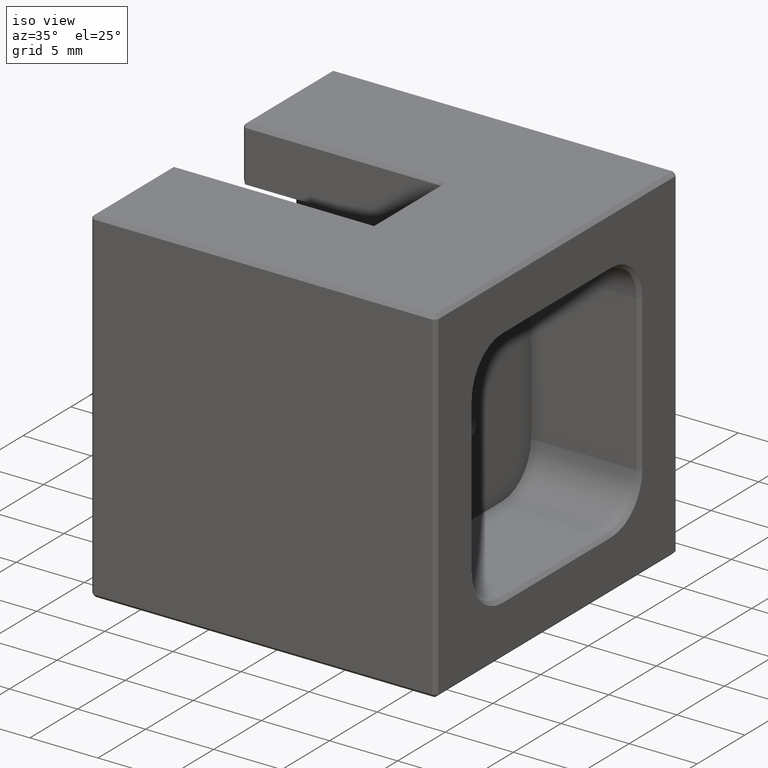
[diagram: clean part render]
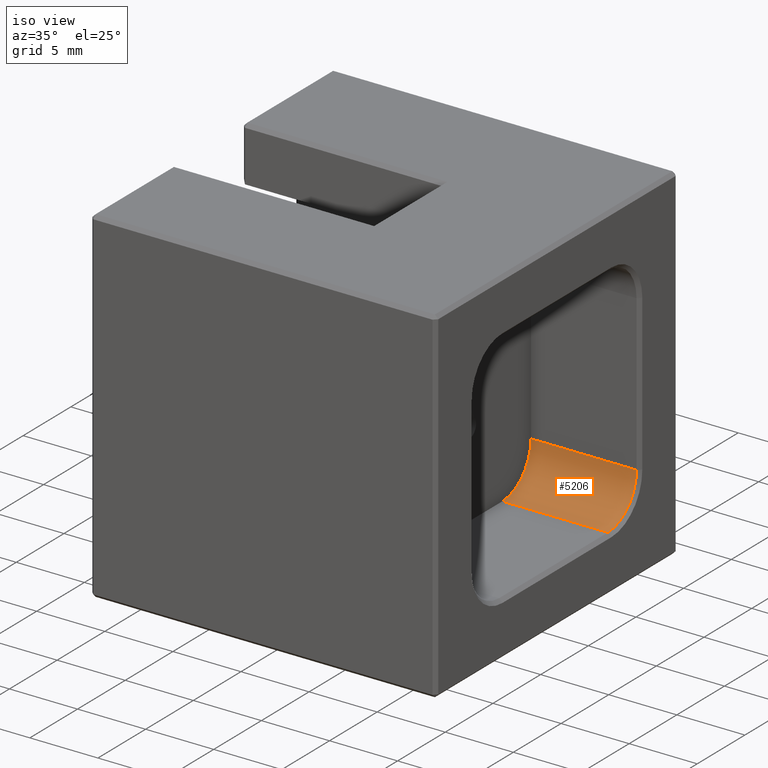
[diagram: same view with one face highlighted and labeled with its STEP entity id]
A machine part, iso view. The second image highlights one B-rep face of the part: STEP entity #5206.
In plain terms, the highlighted cylindrical surface (partial cylindrical patch) has radius 3 mm, axis along (-1, 0, 0).
Its self-contained STEP definition (entity closure, byte-faithful):
#27 = CARTESIAN_POINT ( 'NONE',  ( 4.699999999999995737, 5.699999999999997513, -5.699999999999998401 ) ) ;
#357 = EDGE_CURVE ( 'NONE', #5901, #1557, #3948, .T. ) ;
#454 = CARTESIAN_POINT ( 'NONE',  ( 4.699999999999995737, 8.699999999999997513, -5.699999999999998401 ) ) ;
#532 = CARTESIAN_POINT ( 'NONE',  ( 12.45000000000000284, 8.699999999999997513, -5.699999999999998401 ) ) ;
#546 = AXIS2_PLACEMENT_3D ( 'NONE', #5153, #4287, #917 ) ;
#618 = DIRECTION ( 'NONE',  ( 1.000000000000000000, 0.000000000000000000, 0.000000000000000000 ) ) ;
#710 = ORIENTED_EDGE ( 'NONE', *, *, #2223, .F. ) ;
#917 = DIRECTION ( 'NONE',  ( 0.000000000000000000, 0.000000000000000000, 1.000000000000000000 ) ) ;
#1118 = CIRCLE ( 'NONE', #5376, 3.000000000000000888 ) ;
#1519 = EDGE_CURVE ( 'NONE', #4354, #1557, #3793, .T. ) ;
#1557 = VERTEX_POINT ( 'NONE', #532 ) ;
#1833 = EDGE_LOOP ( 'NONE', ( #4302, #4150, #4574, #710 ) ) ;
#1937 = AXIS2_PLACEMENT_3D ( 'NONE', #27, #3464, #5894 ) ;
#2223 = EDGE_CURVE ( 'NONE', #4332, #5901, #1118, .T. ) ;
#2564 = DIRECTION ( 'NONE',  ( 0.000000000000000000, 0.000000000000000000, -1.000000000000000000 ) ) ;
#3051 = CARTESIAN_POINT ( 'NONE',  ( 4.699999999999995737, 5.699999999999997513, -5.699999999999998401 ) ) ;
#3306 = CYLINDRICAL_SURFACE ( 'NONE', #1937, 3.000000000000000000 ) ;
#3464 = DIRECTION ( 'NONE',  ( -1.000000000000000000, 0.000000000000000000, 0.000000000000000000 ) ) ;
#3793 = CIRCLE ( 'NONE', #546, 3.000000000000000000 ) ;
#3866 = FACE_OUTER_BOUND ( 'NONE', #1833, .T. ) ;
#3948 = LINE ( 'NONE', #4161, #5147 ) ;
#4141 = LINE ( 'NONE', #5814, #5618 ) ;
#4150 = ORIENTED_EDGE ( 'NONE', *, *, #1519, .T. ) ;
#4161 = CARTESIAN_POINT ( 'NONE',  ( 12.69999999999999574, 8.699999999999997513, -5.699999999999998401 ) ) ;
#4204 = DIRECTION ( 'NONE',  ( 1.000000000000000000, 0.000000000000000000, 0.000000000000000000 ) ) ;
#4287 = DIRECTION ( 'NONE',  ( 1.000000000000000000, -0.000000000000000000, -0.000000000000000000 ) ) ;
#4302 = ORIENTED_EDGE ( 'NONE', *, *, #5704, .F. ) ;
#4332 = VERTEX_POINT ( 'NONE', #5722 ) ;
#4354 = VERTEX_POINT ( 'NONE', #5347 ) ;
#4574 = ORIENTED_EDGE ( 'NONE', *, *, #357, .F. ) ;
#5147 = VECTOR ( 'NONE', #4204, 1000.000000000000000 ) ;
#5153 = CARTESIAN_POINT ( 'NONE',  ( 12.45000000000000284, 5.699999999999997513, -5.699999999999998401 ) ) ;
#5206 = ADVANCED_FACE ( 'NONE', ( #3866 ), #3306, .F. ) ;
#5347 = CARTESIAN_POINT ( 'NONE',  ( 12.45000000000000284, 5.699999999999997513, -8.699999999999999289 ) ) ;
#5376 = AXIS2_PLACEMENT_3D ( 'NONE', #3051, #618, #2564 ) ;
#5618 = VECTOR ( 'NONE', #6306, 1000.000000000000000 ) ;
#5704 = EDGE_CURVE ( 'NONE', #4354, #4332, #4141, .T. ) ;
#5722 = CARTESIAN_POINT ( 'NONE',  ( 4.699999999999995737, 5.699999999999997513, -8.699999999999999289 ) ) ;
#5814 = CARTESIAN_POINT ( 'NONE',  ( 4.699999999999995737, 5.699999999999997513, -8.699999999999999289 ) ) ;
#5894 = DIRECTION ( 'NONE',  ( 0.000000000000000000, 0.000000000000000000, 1.000000000000000000 ) ) ;
#5901 = VERTEX_POINT ( 'NONE', #454 ) ;
#6306 = DIRECTION ( 'NONE',  ( -1.000000000000000000, -0.000000000000000000, -0.000000000000000000 ) ) ;